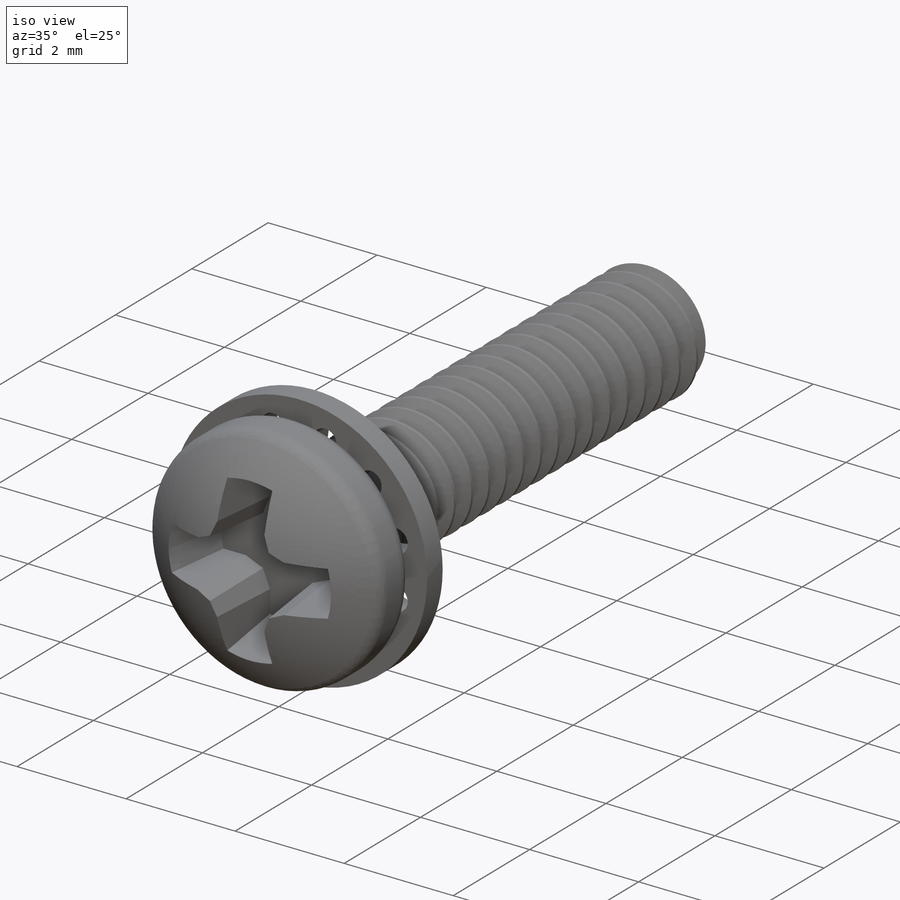
[diagram: iso view]
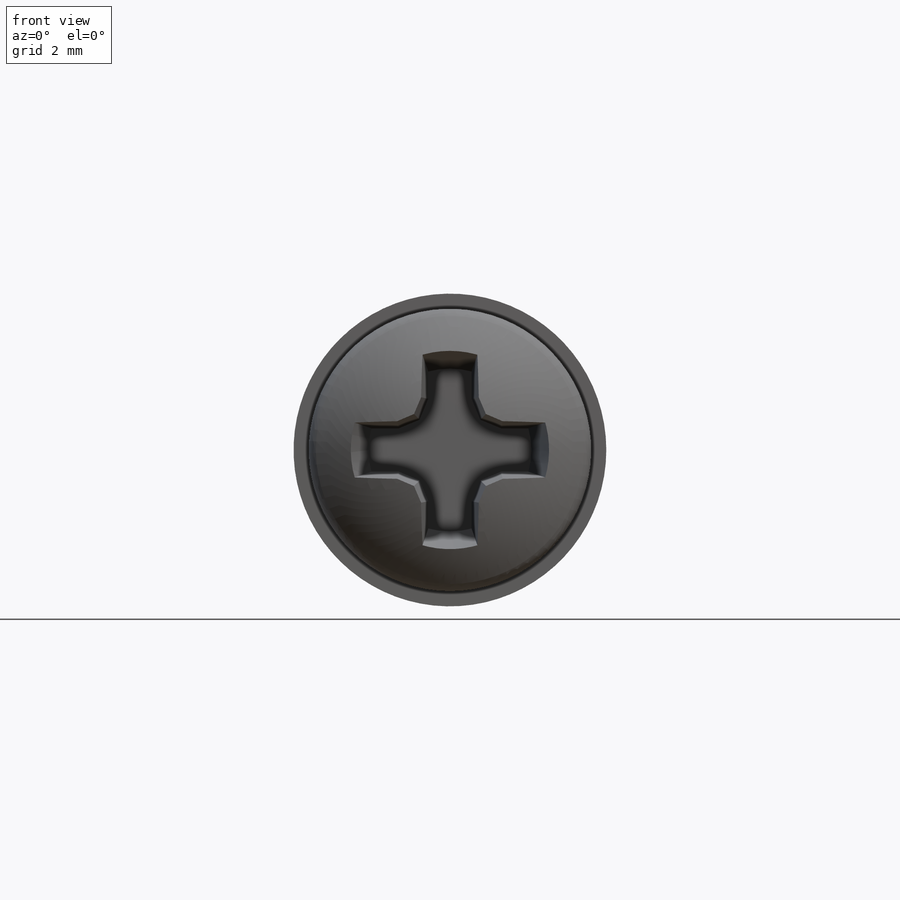
[diagram: front view]
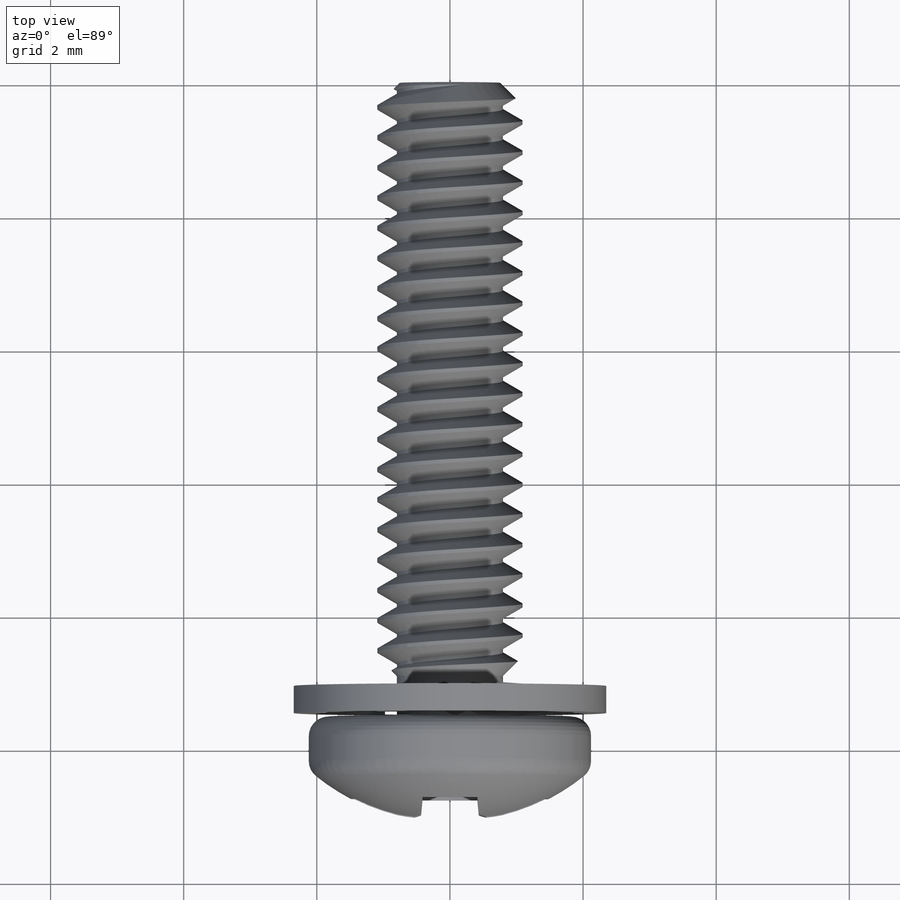
[diagram: top view]
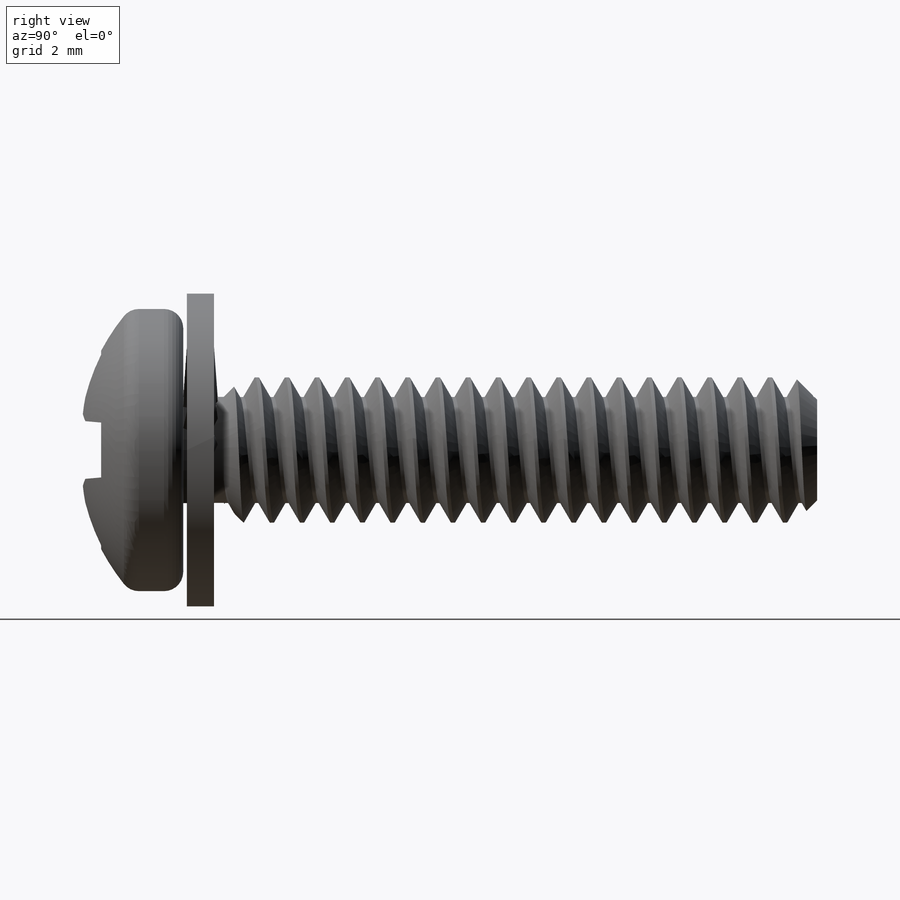
[diagram: right view]
SOLIDWORKS PART (.sldprt)
format: sldprt  version: not decoded by parser v0  size: 1,312,768 bytes
history: native  units: mm
features: sketch x15, cut_extrude x4, plane x4, cut_revolve x3, pattern_circular x3, revolve x2, extrude x2, material x1, helix x1, sweep x1, boolean_combine x1 (+13 scaffold rows collapsed)
feature tree (50):
  scaffold x13  (default folders/planes/origin — collapsed)
  material  "Material <not specified>"
  sketch  "Sketch1"  dims[decimal equ=2.1844mm]
  helix  "Helix/Spiral1"  Pitch=9.978571mm helix length=9.978571mm pitch=0.453571mm TPI=22
  sketch  "Sketch2"  dims[c1.D1=~1.278166mm c2.D1=60.0deg c2.D2=~2.687556mm c3.D2=30.0deg c3.D3=~0.056696mm c3.D4=~0.226786mm c4.D2=~1.814286mm]
  sketch  "Sketch3"  dims[length=9.525mm]
  revolve  "Revolve1"  Angle=360deg
  sweep  "Sweep1"
  sketch  "Sketch33"
  cut_extrude  "Extrude6"  [1 undecoded]
  sketch  "Sketch34"  dims[D1=~1.595193mm D2=~1.515434mm]
  cut_extrude  "Extrude7"  [1 undecoded]
  sketch  "Sketch10"  dims[screw length=25.4mm D1=254.0mm D2=12.7mm]
  cut_revolve  "Cut-Revolve2"  Angle=360deg
  sketch  "Sketch35"  dims[c1.D1=~1.036704mm c2.D1=45.0deg c2.D2=0.6096mm]
  cut_revolve  "Cut-Revolve4"  Angle=360deg
  sketch  "Sketch8"  dims[screw length=25.4mm head dia=4.2418mm head height=1.6002mm D1=25.4mm]
  revolve  "Revolve2"  Angle=360deg
  sketch  "Sketch11"  dims[D1=~0.288036mm D5=0.508mm D2=0.635mm D3=0.635mm D4=0.635mm]
  cut_revolve  "Cut-Revolve3"  Angle=360deg
  plane  "Plane1"
  sketch  "Sketch12"  dims[c1.phillips dia=3.175mm c1.D2=~2.38125mm c2.D2=45.0deg c2.D3=0.508mm c2.D4=~2.38125mm c3.D4=22.5deg c3.slot width=0.889mm c3.phillips dia=3.175mm]
  cut_extrude  "Cut-Extrude1"  Depth=1.36017mm
  pattern_circular  "CirPattern1"  Count=4 Angle=360deg
  plane  "Plane8"  Offset=0.055811mm
  sketch  "Sketch18"  dims[c1.washer dia.=4.699mm c1.D2=~2.955565mm c1.D1=~1.551903mm c2.D2=~0.775952mm c2.D1=~1.21412mm]
  extrude  "Extrude1"  Depth=0.4064mm washer width=0.4064mm
  sketch  "Sketch19"  dims[c1.D5=6.8072mm c1.D6=0.508mm c1.D2=~0.42291mm c1.D1=~4.48128mm c2.D1=15.0deg c2.D2=~4.48128mm c3.D2=15.0deg c3.D3=0.381mm c3.D4=0.254mm c3.D1=~0.673785mm c4.D2=~2.42824mm c4.D1=~4.48128mm c5.D1=25.0deg c6.D1=~2.580008mm c7.D1=3.0deg c7.D5=~1.092708mm c7.D3=~1.208055mm c8.D3=15.0deg c8.D4=~0.360814mm c8.D1=~0.293687mm]
  cut_extrude  "Cut-Extrude2"  [1 undecoded]
  pattern_circular  "CirPattern2"  Count=12 Angle=360deg
  plane  "Plane6"
  sketch  "Sketch25"  dims[D1=0.0mm]
  plane  "Plane7"
  sketch  "Sketch26"  dims[c1.D1=~0.627518mm c2.D1=15.0deg c2.D2=~0.127496mm c3.D1=~1.19883mm c4.D1=15.0deg c4.D2=~0.055811mm c5.D1=~0.360814mm c5.D3=~1.232534mm c6.D3=165.0deg c7.D3=~1.232534mm c8.D3=24.0deg]
  sketch  "Sketch30"  dims[D1=0.0mm]
  extrude  "Extrude5"  Depth=0.0508mm
  pattern_circular  "CirPattern8"  Count=12 Angle=360deg
  boolean_combine  "Combine2"
decode coverage: 26 of 32 modeling features carry decoded parameters
note: ~ marks probable driven/reference dimensions
note: 3 parameter values undecoded
summary: no parameter record found for 3 features
note: suppression state not decoded; provenance and decode notes live in map.json
